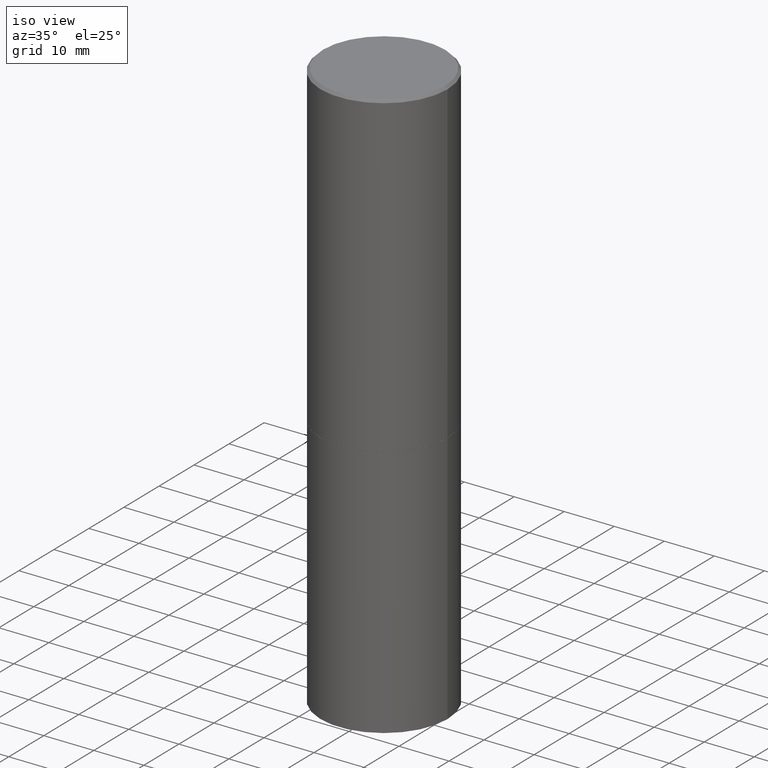
[diagram: clean part render]
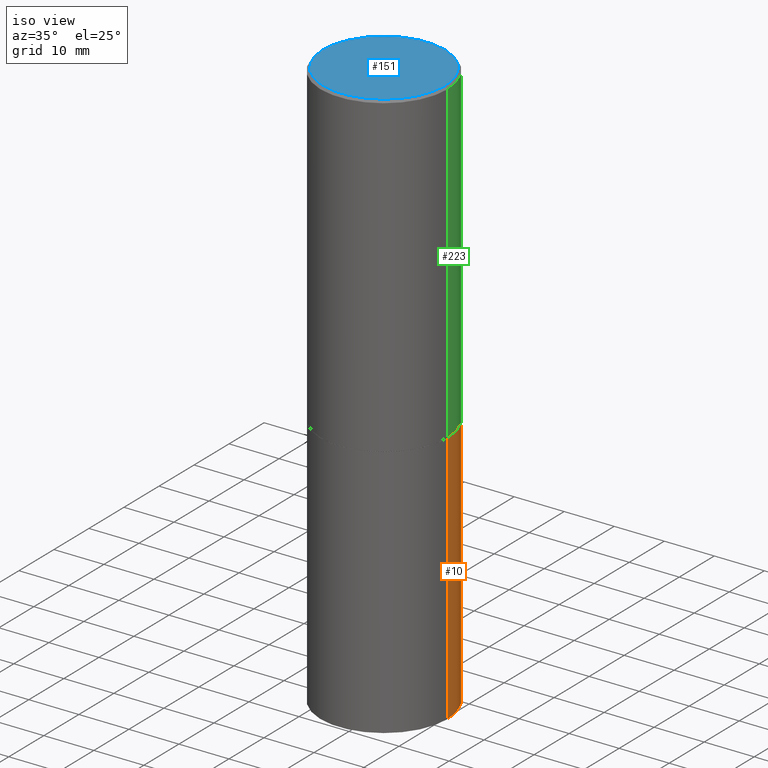
[diagram: same view with three faces highlighted in distinct colors, each labeled with its STEP entity id]
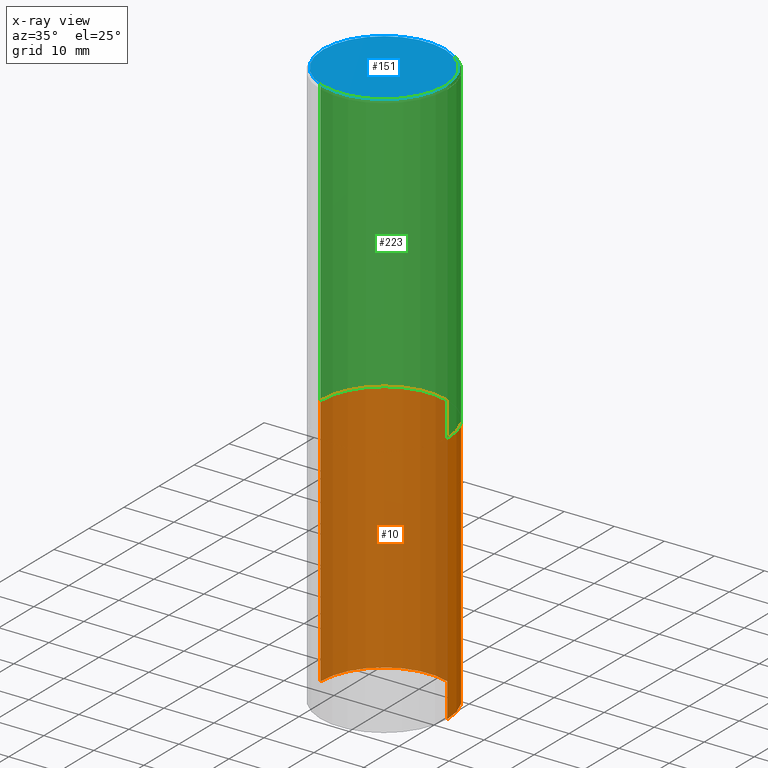
[diagram: x-ray of the same camera — body ghosted, the three highlighted faces saturated]
A machine part, iso view with three faces highlighted in distinct colors.
The next image is the same camera in x-ray (body ghosted, the three faces saturated) — at least one of them is partly hidden behind the body in this view.
Their STEP definitions:

[orange] entity #10 — the highlighted cylindrical surface (partial cylindrical patch) has radius 12.7 mm, axis along (-0, 0, 1).
#8 = CARTESIAN_POINT ( 'NONE',  ( 0.5000000000000000000, -1.920314736363729025E-14, -4.500000000000000000 ) ) ;
#10 = ADVANCED_FACE ( 'NONE', ( #227 ), #66, .T. ) ;
#20 = VECTOR ( 'NONE', #303, 39.37007874015748143 ) ;
#27 = AXIS2_PLACEMENT_3D ( 'NONE', #351, #180, #296 ) ;
#52 = CARTESIAN_POINT ( 'NONE',  ( 6.113672015462842613E-29, -8.728703347107864943E-15, -2.500000000000000000 ) ) ;
#66 = CYLINDRICAL_SURFACE ( 'NONE', #203, 0.5000000000000000000 ) ;
#87 = CARTESIAN_POINT ( 'NONE',  ( 0.5000000000000000000, -3.491481338843133355E-15, 2.438088387897967896E-29 ) ) ;
#99 = EDGE_CURVE ( 'NONE', #232, #255, #165, .T. ) ;
#103 = EDGE_CURVE ( 'NONE', #301, #255, #200, .T. ) ;
#106 = AXIS2_PLACEMENT_3D ( 'NONE', #52, #231, #265 ) ;
#117 = ORIENTED_EDGE ( 'NONE', *, *, #99, .F. ) ;
#124 = EDGE_LOOP ( 'NONE', ( #278, #253, #117, #130 ) ) ;
#130 = ORIENTED_EDGE ( 'NONE', *, *, #291, .F. ) ;
#165 = CIRCLE ( 'NONE', #106, 0.5000000000000000000 ) ;
#168 = DIRECTION ( 'NONE',  ( 1.000000000000000000, -6.982962677686266711E-15, 4.876176775795935793E-29 ) ) ;
#180 = DIRECTION ( 'NONE',  ( -2.445468806185136597E-29, 3.491481338843145583E-15, 1.000000000000000000 ) ) ;
#181 = CIRCLE ( 'NONE', #27, 0.5000000000000000000 ) ;
#190 = CARTESIAN_POINT ( 'NONE',  ( -0.5000000000000000000, -8.667471007150509990E-15, -2.500000000000000000 ) ) ;
#200 = LINE ( 'NONE', #338, #307 ) ;
#203 = AXIS2_PLACEMENT_3D ( 'NONE', #364, #312, #168 ) ;
#213 = EDGE_CURVE ( 'NONE', #363, #301, #181, .T. ) ;
#227 = FACE_OUTER_BOUND ( 'NONE', #124, .T. ) ;
#231 = DIRECTION ( 'NONE',  ( -2.445468806185136597E-29, 3.491481338843145583E-15, 1.000000000000000000 ) ) ;
#232 = VERTEX_POINT ( 'NONE', #279 ) ;
#253 = ORIENTED_EDGE ( 'NONE', *, *, #103, .T. ) ;
#255 = VERTEX_POINT ( 'NONE', #190 ) ;
#265 = DIRECTION ( 'NONE',  ( 1.000000000000000000, -6.982962677686269077E-15, 0.000000000000000000 ) ) ;
#278 = ORIENTED_EDGE ( 'NONE', *, *, #213, .T. ) ;
#279 = CARTESIAN_POINT ( 'NONE',  ( 0.5000000000000000000, -1.222018468595099830E-14, -2.500000000000000000 ) ) ;
#291 = EDGE_CURVE ( 'NONE', #363, #232, #327, .T. ) ;
#296 = DIRECTION ( 'NONE',  ( 1.000000000000000000, -6.982962677686266711E-15, 0.000000000000000000 ) ) ;
#297 = CARTESIAN_POINT ( 'NONE',  ( -0.5000000000000000000, -8.667471007150509990E-15, -4.500000000000000000 ) ) ;
#301 = VERTEX_POINT ( 'NONE', #297 ) ;
#303 = DIRECTION ( 'NONE',  ( -2.445468806185136877E-29, 3.491481338843145188E-15, 1.000000000000000000 ) ) ;
#307 = VECTOR ( 'NONE', #311, 39.37007874015748143 ) ;
#311 = DIRECTION ( 'NONE',  ( -2.445468806185136877E-29, 3.491481338843145188E-15, 1.000000000000000000 ) ) ;
#312 = DIRECTION ( 'NONE',  ( -2.445468806185136597E-29, 3.491481338843145583E-15, 1.000000000000000000 ) ) ;
#327 = LINE ( 'NONE', #87, #20 ) ;
#338 = CARTESIAN_POINT ( 'NONE',  ( -0.5000000000000000000, 3.552713678800500929E-15, -2.459467545127452891E-29 ) ) ;
#351 = CARTESIAN_POINT ( 'NONE',  ( 1.100460962783311469E-28, -1.571166602479415690E-14, -4.500000000000000000 ) ) ;
#363 = VERTEX_POINT ( 'NONE', #8 ) ;
#364 = CARTESIAN_POINT ( 'NONE',  ( 0.000000000000000000, 0.000000000000000000, 0.000000000000000000 ) ) ;

[blue] entity #151 — the highlighted planar face has unit normal (0, -0, -1).
#30 = EDGE_CURVE ( 'NONE', #282, #246, #225, .T. ) ;
#36 = DIRECTION ( 'NONE',  ( 1.000000000000000000, -6.982962677686267499E-15, 4.876431871984417079E-29 ) ) ;
#55 = CARTESIAN_POINT ( 'NONE',  ( -0.4799999999999996492, 3.386736898677836830E-15, 1.707404996037808406E-17 ) ) ;
#65 = CIRCLE ( 'NONE', #310, 0.4799999999999996492 ) ;
#75 = AXIS2_PLACEMENT_3D ( 'NONE', #211, #149, #36 ) ;
#83 = AXIS2_PLACEMENT_3D ( 'NONE', #111, #183, #105 ) ;
#105 = DIRECTION ( 'NONE',  ( -1.000000000000000000, 6.982962677686265922E-15, -4.876176775795935793E-29 ) ) ;
#111 = CARTESIAN_POINT ( 'NONE',  ( 3.351822085289405181E-15, 0.4799999999999996492, -1.667374017664507851E-15 ) ) ;
#114 = DIRECTION ( 'NONE',  ( 1.000000000000000000, -6.982962677686267499E-15, 4.876431871984417079E-29 ) ) ;
#126 = EDGE_CURVE ( 'NONE', #246, #282, #65, .T. ) ;
#139 = CARTESIAN_POINT ( 'NONE',  ( -4.175405657340879278E-46, 5.961372681521788801E-32, 1.707404996040164512E-17 ) ) ;
#149 = DIRECTION ( 'NONE',  ( -2.445468806185136597E-29, 3.491481338843145583E-15, 1.000000000000000000 ) ) ;
#151 = ADVANCED_FACE ( 'NONE', ( #241 ), #298, .F. ) ;
#163 = ORIENTED_EDGE ( 'NONE', *, *, #126, .T. ) ;
#183 = DIRECTION ( 'NONE',  ( 2.438088387897960049E-29, -3.491481338843145188E-15, -1.000000000000000000 ) ) ;
#211 = CARTESIAN_POINT ( 'NONE',  ( -4.175405657340879278E-46, 5.961372681521788801E-32, 1.707404996040164512E-17 ) ) ;
#225 = CIRCLE ( 'NONE', #75, 0.4799999999999996492 ) ;
#241 = FACE_OUTER_BOUND ( 'NONE', #331, .T. ) ;
#246 = VERTEX_POINT ( 'NONE', #55 ) ;
#260 = ORIENTED_EDGE ( 'NONE', *, *, #30, .T. ) ;
#282 = VERTEX_POINT ( 'NONE', #353 ) ;
#298 = PLANE ( 'NONE',  #83 ) ;
#310 = AXIS2_PLACEMENT_3D ( 'NONE', #139, #359, #114 ) ;
#331 = EDGE_LOOP ( 'NONE', ( #163, #260 ) ) ;
#353 = CARTESIAN_POINT ( 'NONE',  ( 0.4799999999999996492, -3.396558832296480127E-15, 1.707404996042524007E-17 ) ) ;
#359 = DIRECTION ( 'NONE',  ( -2.445468806185136597E-29, 3.491481338843145583E-15, 1.000000000000000000 ) ) ;

[green] entity #223 — the highlighted cylindrical surface (partial cylindrical patch) has radius 12.7 mm, axis along (-0, 0, 1).
#2 = ORIENTED_EDGE ( 'NONE', *, *, #152, .F. ) ;
#13 = CARTESIAN_POINT ( 'NONE',  ( 0.000000000000000000, 0.000000000000000000, 0.000000000000000000 ) ) ;
#31 = DIRECTION ( 'NONE',  ( -2.445468806185136597E-29, 3.491481338843145583E-15, 1.000000000000000000 ) ) ;
#37 = CARTESIAN_POINT ( 'NONE',  ( 0.5000000000000000000, -1.221669320461215371E-14, -2.499000000000000110 ) ) ;
#43 = CARTESIAN_POINT ( 'NONE',  ( -0.5000000000000000000, -8.448070674724411945E-16, -2.499000000000000110 ) ) ;
#47 = CIRCLE ( 'NONE', #243, 0.5000000000000000000 ) ;
#56 = DIRECTION ( 'NONE',  ( -2.445468806185136597E-29, 3.491481338843145583E-15, 1.000000000000000000 ) ) ;
#59 = EDGE_CURVE ( 'NONE', #215, #318, #47, .T. ) ;
#70 = DIRECTION ( 'NONE',  ( 1.000000000000000000, -6.982962677686266711E-15, 0.000000000000000000 ) ) ;
#80 = CARTESIAN_POINT ( 'NONE',  ( 4.890937612370302936E-31, -6.982962677686332285E-17, -0.02000000000000011838 ) ) ;
#92 = EDGE_CURVE ( 'NONE', #318, #198, #142, .T. ) ;
#95 = EDGE_LOOP ( 'NONE', ( #328, #178, #226, #2 ) ) ;
#125 = DIRECTION ( 'NONE',  ( -2.445468806185136877E-29, 3.491481338843145188E-15, 1.000000000000000000 ) ) ;
#128 = LINE ( 'NONE', #326, #272 ) ;
#132 = AXIS2_PLACEMENT_3D ( 'NONE', #80, #56, #70 ) ;
#136 = DIRECTION ( 'NONE',  ( -2.445468806185136597E-29, 3.491481338843145583E-15, 1.000000000000000000 ) ) ;
#142 = LINE ( 'NONE', #365, #261 ) ;
#147 = VERTEX_POINT ( 'NONE', #221 ) ;
#152 = EDGE_CURVE ( 'NONE', #215, #147, #128, .T. ) ;
#154 = CARTESIAN_POINT ( 'NONE',  ( -0.4999999999999997224, 3.421651712066268085E-15, -0.02000000000000011838 ) ) ;
#156 = FACE_OUTER_BOUND ( 'NONE', #95, .T. ) ;
#164 = CIRCLE ( 'NONE', #132, 0.4999999999999997224 ) ;
#178 = ORIENTED_EDGE ( 'NONE', *, *, #92, .T. ) ;
#194 = CARTESIAN_POINT ( 'NONE',  ( 6.111226546656657010E-29, -8.725211865769021935E-15, -2.499000000000000110 ) ) ;
#198 = VERTEX_POINT ( 'NONE', #154 ) ;
#206 = AXIS2_PLACEMENT_3D ( 'NONE', #13, #136, #239 ) ;
#215 = VERTEX_POINT ( 'NONE', #37 ) ;
#221 = CARTESIAN_POINT ( 'NONE',  ( 0.4999999999999997224, -3.500078625662627502E-15, -0.02000000000000011838 ) ) ;
#223 = ADVANCED_FACE ( 'NONE', ( #156 ), #273, .T. ) ;
#226 = ORIENTED_EDGE ( 'NONE', *, *, #229, .F. ) ;
#229 = EDGE_CURVE ( 'NONE', #147, #198, #164, .T. ) ;
#239 = DIRECTION ( 'NONE',  ( 1.000000000000000000, -6.982962677686267499E-15, 4.876176775795936353E-29 ) ) ;
#243 = AXIS2_PLACEMENT_3D ( 'NONE', #194, #31, #324 ) ;
#261 = VECTOR ( 'NONE', #125, 39.37007874015748143 ) ;
#272 = VECTOR ( 'NONE', #302, 39.37007874015748143 ) ;
#273 = CYLINDRICAL_SURFACE ( 'NONE', #206, 0.4999999999999998335 ) ;
#302 = DIRECTION ( 'NONE',  ( -2.445468806185136877E-29, 3.491481338843145188E-15, 1.000000000000000000 ) ) ;
#318 = VERTEX_POINT ( 'NONE', #43 ) ;
#324 = DIRECTION ( 'NONE',  ( 1.000000000000000000, -6.982962677686265133E-15, 0.000000000000000000 ) ) ;
#326 = CARTESIAN_POINT ( 'NONE',  ( 0.4999999999999998335, -3.491481338843132566E-15, 2.438088387897967336E-29 ) ) ;
#328 = ORIENTED_EDGE ( 'NONE', *, *, #59, .T. ) ;
#365 = CARTESIAN_POINT ( 'NONE',  ( -0.4999999999999998335, 3.552713678800499746E-15, -2.459467545127452330E-29 ) ) ;